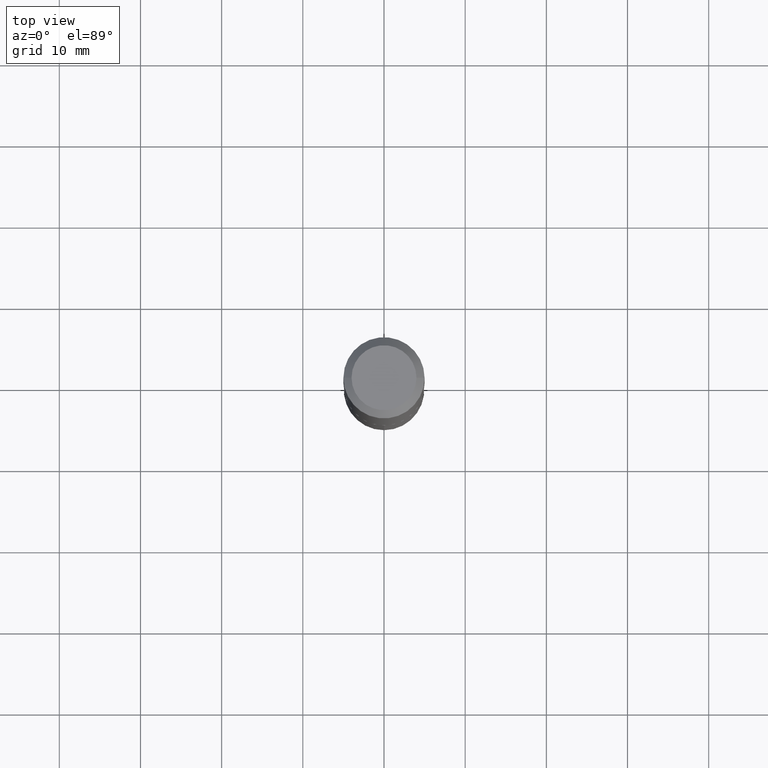
[diagram: clean part render]
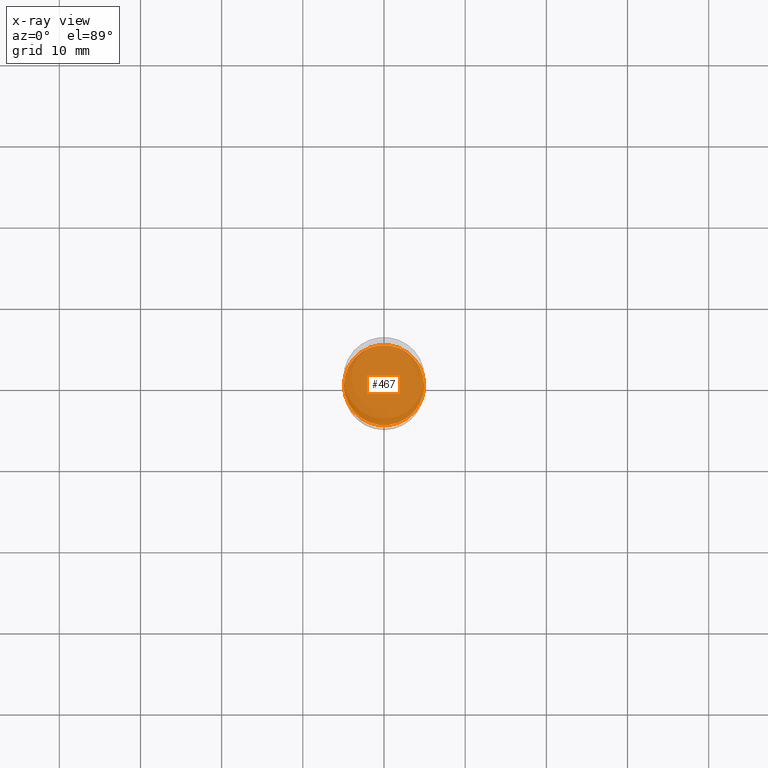
[diagram: x-ray — body ghosted, one internal face saturated and labeled with its STEP entity id]
A machine part, top view, then the same camera in x-ray: the body is ghosted and one INTERNAL B-rep face — a face not visible from any outside direction — is saturated and labeled: STEP entity #467.
In plain terms, the highlighted planar face has unit normal (-0, 0, 1).
Its self-contained STEP definition (entity closure, byte-faithful):
#40 = CARTESIAN_POINT ( 'NONE',  ( 0.1943999999999999895, -8.780028122788853203E-15, -2.125899999999999679 ) ) ;
#59 = DIRECTION ( 'NONE',  ( 1.000000000000000000, -6.982962677686265922E-15, 4.876176775795935793E-29 ) ) ;
#92 = CARTESIAN_POINT ( 'NONE',  ( -0.1943999999999999895, -6.038595872754897034E-15, -2.125899999999999679 ) ) ;
#94 = PLANE ( 'NONE',  #221 ) ;
#105 = VERTEX_POINT ( 'NONE', #92 ) ;
#145 = ORIENTED_EDGE ( 'NONE', *, *, #458, .F. ) ;
#189 = AXIS2_PLACEMENT_3D ( 'NONE', #243, #419, #317 ) ;
#221 = AXIS2_PLACEMENT_3D ( 'NONE', #351, #348, #59 ) ;
#235 = EDGE_CURVE ( 'NONE', #394, #105, #382, .T. ) ;
#243 = CARTESIAN_POINT ( 'NONE',  ( 5.198822135068982087E-29, -7.422540178246643119E-15, -2.125899999999999679 ) ) ;
#245 = AXIS2_PLACEMENT_3D ( 'NONE', #294, #300, #292 ) ;
#292 = DIRECTION ( 'NONE',  ( 1.000000000000000000, -6.982962677686267499E-15, 0.000000000000000000 ) ) ;
#294 = CARTESIAN_POINT ( 'NONE',  ( 5.198822135068982087E-29, -7.422540178246643119E-15, -2.125899999999999679 ) ) ;
#300 = DIRECTION ( 'NONE',  ( -2.445468806185136597E-29, 3.491481338843145583E-15, 1.000000000000000000 ) ) ;
#317 = DIRECTION ( 'NONE',  ( 1.000000000000000000, -6.982962677686267499E-15, 0.000000000000000000 ) ) ;
#345 = CIRCLE ( 'NONE', #189, 0.1943999999999999895 ) ;
#348 = DIRECTION ( 'NONE',  ( -2.438088387897960049E-29, 3.491481338843145188E-15, 1.000000000000000000 ) ) ;
#351 = CARTESIAN_POINT ( 'NONE',  ( 5.198822135068982087E-29, -7.422540178246643119E-15, -2.125899999999999679 ) ) ;
#382 = CIRCLE ( 'NONE', #245, 0.1943999999999999895 ) ;
#394 = VERTEX_POINT ( 'NONE', #40 ) ;
#400 = ORIENTED_EDGE ( 'NONE', *, *, #235, .F. ) ;
#419 = DIRECTION ( 'NONE',  ( -2.445468806185136597E-29, 3.491481338843145583E-15, 1.000000000000000000 ) ) ;
#428 = FACE_OUTER_BOUND ( 'NONE', #464, .T. ) ;
#458 = EDGE_CURVE ( 'NONE', #105, #394, #345, .T. ) ;
#464 = EDGE_LOOP ( 'NONE', ( #400, #145 ) ) ;
#467 = ADVANCED_FACE ( 'NONE', ( #428 ), #94, .F. ) ;